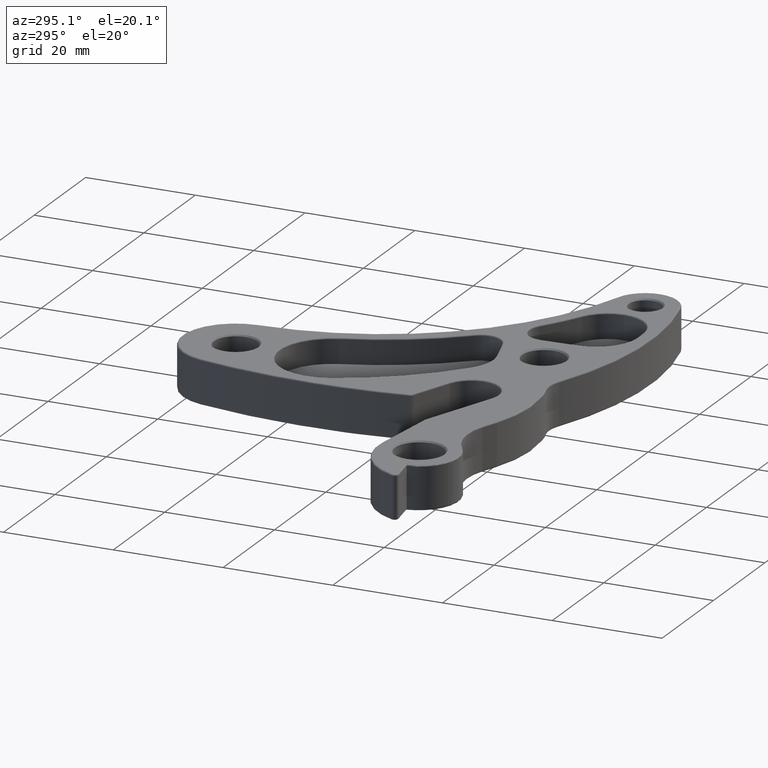
[diagram: clean part render]
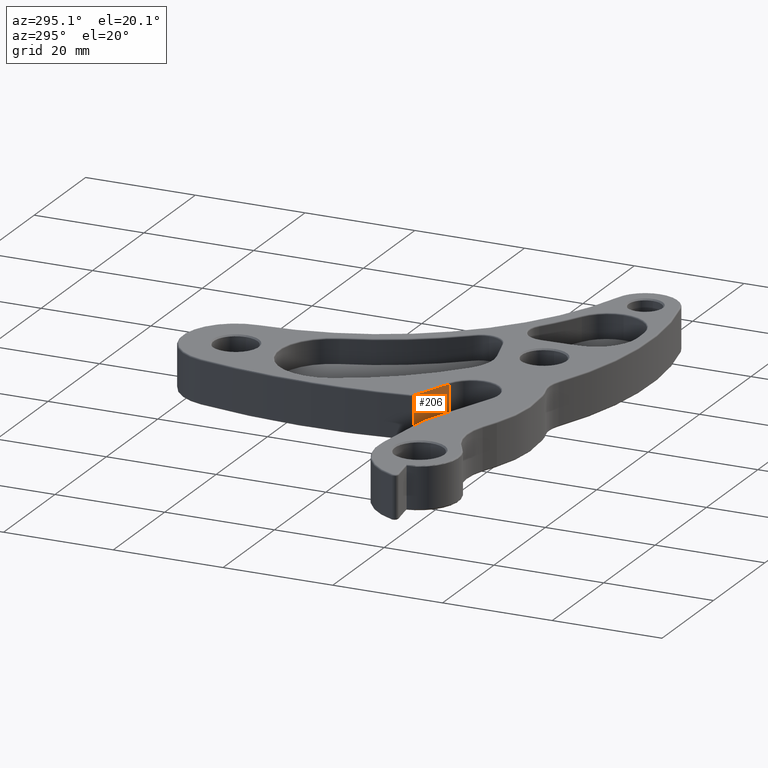
[diagram: same view with one face highlighted and labeled with its STEP entity id]
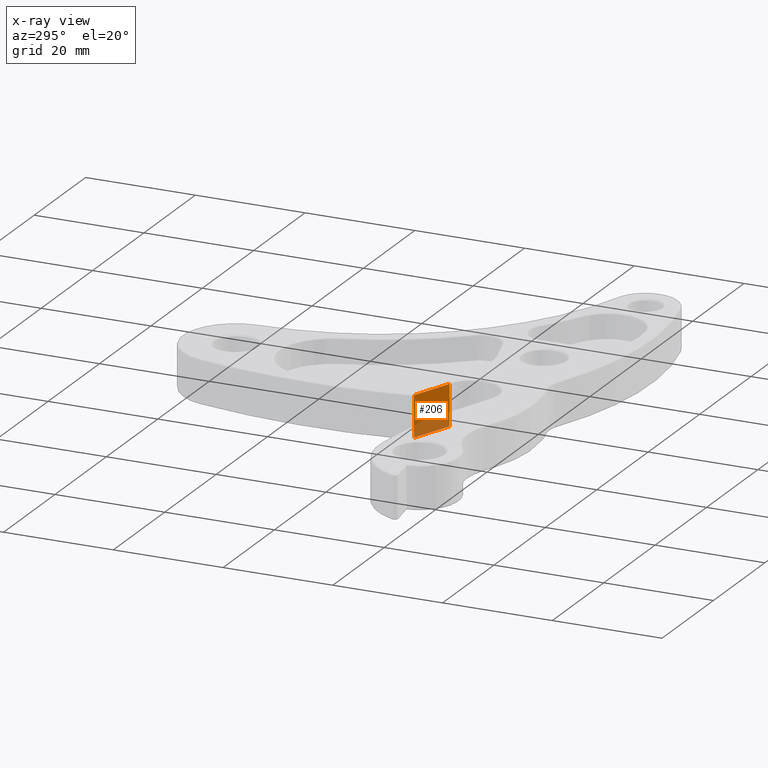
[diagram: x-ray of the same camera — body ghosted, the highlighted face saturated]
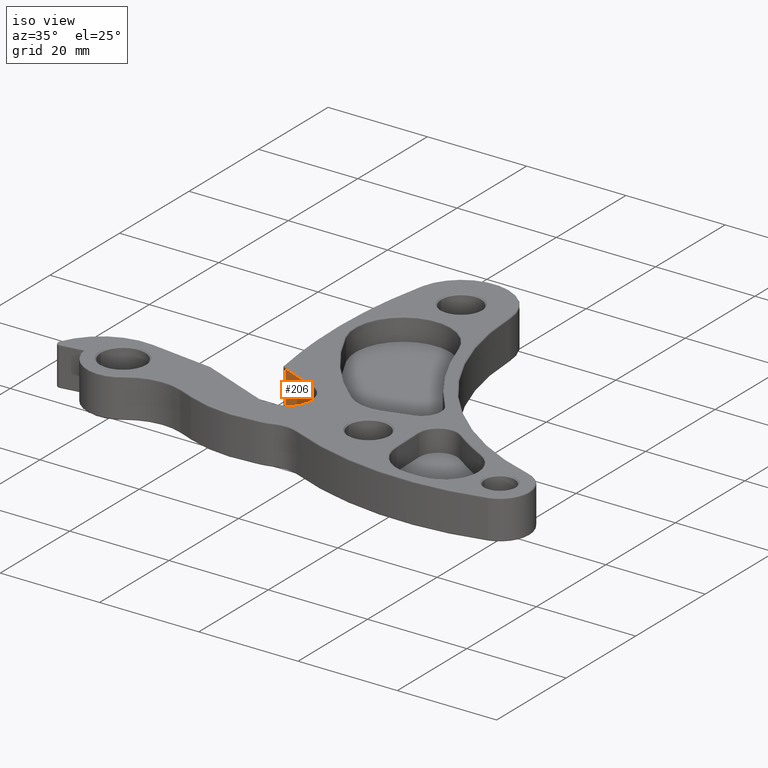
[diagram: same view with one face highlighted and labeled with its STEP entity id]
A machine part, auxiliary view. The second image highlights one B-rep face of the part: STEP entity #206.
The next image is the same camera in x-ray: the body ghosted, the highlighted face saturated — about 34% of this face is hidden behind the body in this view.
A second angle (iso view) of the same face is appended — the face is thin or edge-on in the first view.
In plain terms, the highlighted planar face has unit normal (0.3759, 0.9267, -0).
Its self-contained STEP definition (entity closure, byte-faithful):
#53 = DIRECTION ( 'NONE',  ( -0.9266617180200361625, 0.3758963425682070314, -0.0000000000000000000 ) ) ;
#112 = AXIS2_PLACEMENT_3D ( 'NONE', #3457, #2912, #2891 ) ;
#206 = ADVANCED_FACE ( 'NONE', ( #2741 ), #2939, .F. ) ;
#215 = ORIENTED_EDGE ( 'NONE', *, *, #1054, .F. ) ;
#226 = VECTOR ( 'NONE', #1242, 39.37007874015748854 ) ;
#286 = VERTEX_POINT ( 'NONE', #3125 ) ;
#521 = LINE ( 'NONE', #2645, #3320 ) ;
#523 = CARTESIAN_POINT ( 'NONE',  ( 4.411527253722267616, -6.595705406887840461, 0.3049999999999999933 ) ) ;
#574 = CARTESIAN_POINT ( 'NONE',  ( 4.117414997847909319, -6.476400034562893815, 0.3049999999999999933 ) ) ;
#594 = LINE ( 'NONE', #574, #2664 ) ;
#682 = EDGE_LOOP ( 'NONE', ( #215, #1245, #2007, #2756 ) ) ;
#829 = VERTEX_POINT ( 'NONE', #523 ) ;
#937 = EDGE_CURVE ( 'NONE', #2644, #2854, #2389, .T. ) ;
#1054 = EDGE_CURVE ( 'NONE', #829, #2854, #521, .T. ) ;
#1203 = CARTESIAN_POINT ( 'NONE',  ( 4.117414997847910207, -6.476400034562893815, 0.009999999999999995004 ) ) ;
#1242 = DIRECTION ( 'NONE',  ( 0.9266617180200361625, -0.3758963425682070314, 0.0000000000000000000 ) ) ;
#1245 = ORIENTED_EDGE ( 'NONE', *, *, #1901, .T. ) ;
#1595 = CARTESIAN_POINT ( 'NONE',  ( 4.117414997847910207, -6.476400034562893815, 0.009999999999999995004 ) ) ;
#1745 = CARTESIAN_POINT ( 'NONE',  ( 4.117414997847910207, -6.476400034562893815, 0.3150000000000000022 ) ) ;
#1751 = VECTOR ( 'NONE', #3089, 39.37007874015748143 ) ;
#1901 = EDGE_CURVE ( 'NONE', #829, #286, #594, .T. ) ;
#2007 = ORIENTED_EDGE ( 'NONE', *, *, #3456, .T. ) ;
#2246 = CARTESIAN_POINT ( 'NONE',  ( 4.411527253722267616, -6.595705406887840461, 0.009999999999999995004 ) ) ;
#2389 = LINE ( 'NONE', #1203, #226 ) ;
#2588 = DIRECTION ( 'NONE',  ( -0.0000000000000000000, -0.0000000000000000000, -1.000000000000000000 ) ) ;
#2644 = VERTEX_POINT ( 'NONE', #1595 ) ;
#2645 = CARTESIAN_POINT ( 'NONE',  ( 4.411527253722267616, -6.595705406887840461, 0.3150000000000000022 ) ) ;
#2664 = VECTOR ( 'NONE', #53, 39.37007874015748854 ) ;
#2741 = FACE_OUTER_BOUND ( 'NONE', #682, .T. ) ;
#2756 = ORIENTED_EDGE ( 'NONE', *, *, #937, .T. ) ;
#2854 = VERTEX_POINT ( 'NONE', #2246 ) ;
#2891 = DIRECTION ( 'NONE',  ( -0.9266617180200361625, 0.3758963425682070314, 0.0000000000000000000 ) ) ;
#2912 = DIRECTION ( 'NONE',  ( 0.3758963425682070869, 0.9266617180200362736, -0.0000000000000000000 ) ) ;
#2939 = PLANE ( 'NONE',  #112 ) ;
#3089 = DIRECTION ( 'NONE',  ( -0.0000000000000000000, -0.0000000000000000000, -1.000000000000000000 ) ) ;
#3125 = CARTESIAN_POINT ( 'NONE',  ( 4.117414997847910207, -6.476400034562893815, 0.3049999999999999933 ) ) ;
#3210 = LINE ( 'NONE', #1745, #1751 ) ;
#3320 = VECTOR ( 'NONE', #2588, 39.37007874015748143 ) ;
#3456 = EDGE_CURVE ( 'NONE', #286, #2644, #3210, .T. ) ;
#3457 = CARTESIAN_POINT ( 'NONE',  ( 4.117414997847910207, -6.476400034562893815, 0.3150000000000000022 ) ) ;